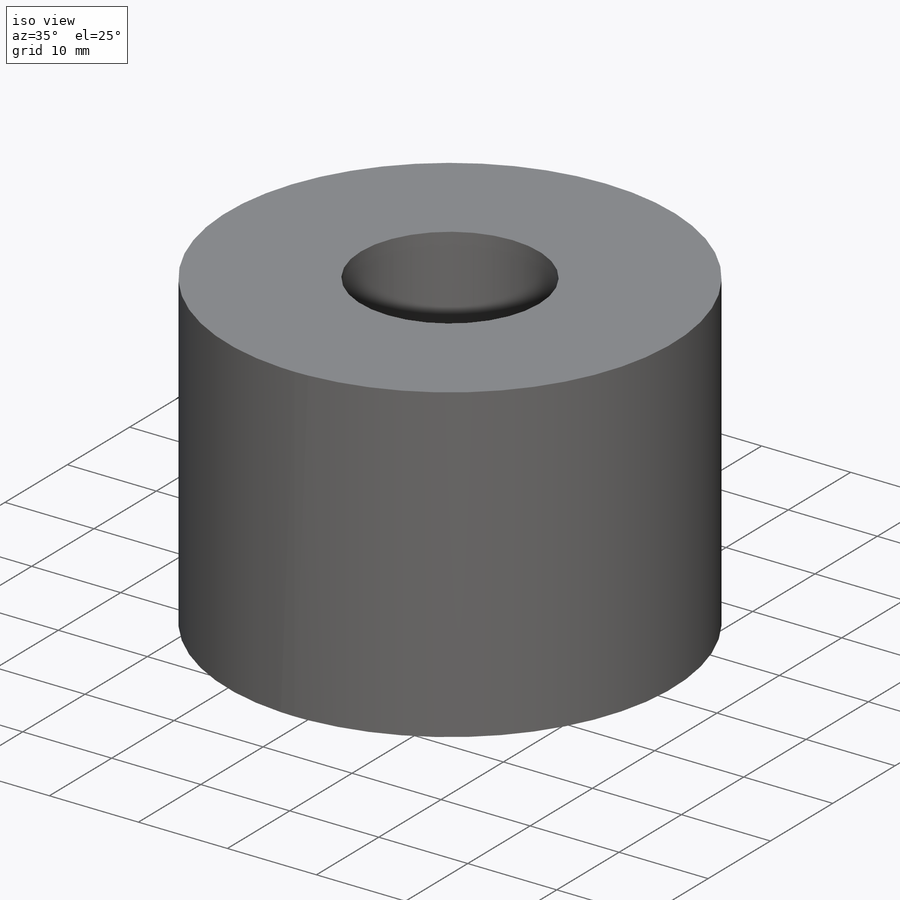
[diagram: iso view]
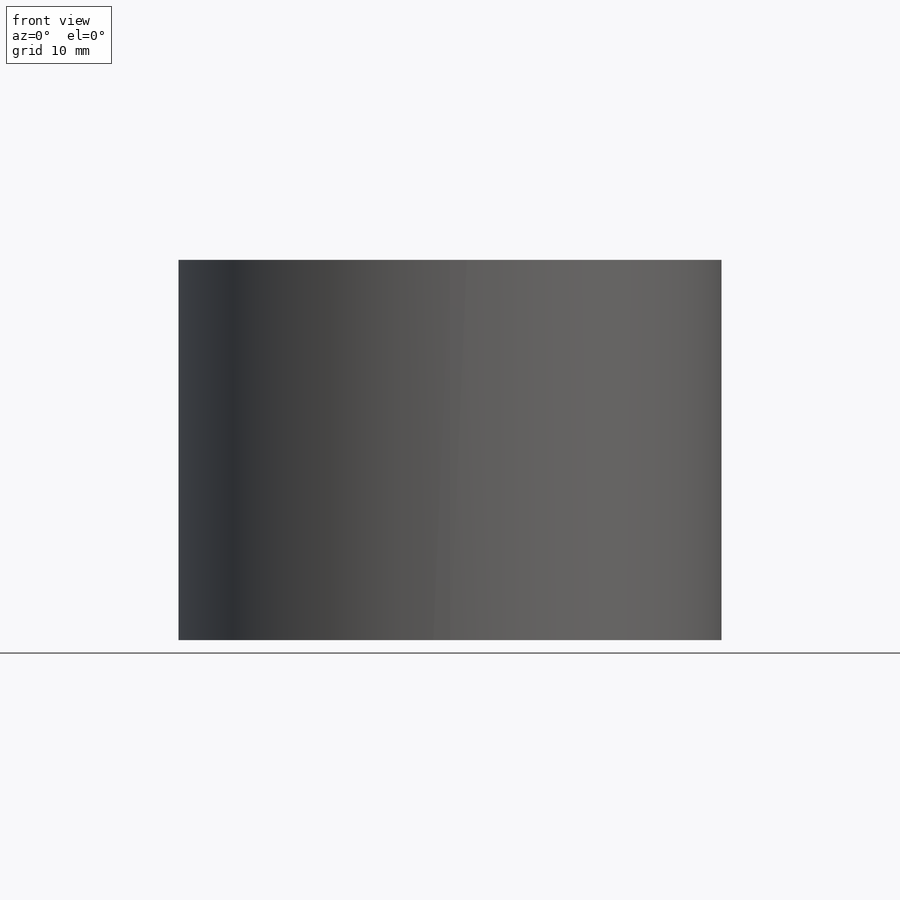
[diagram: front view]
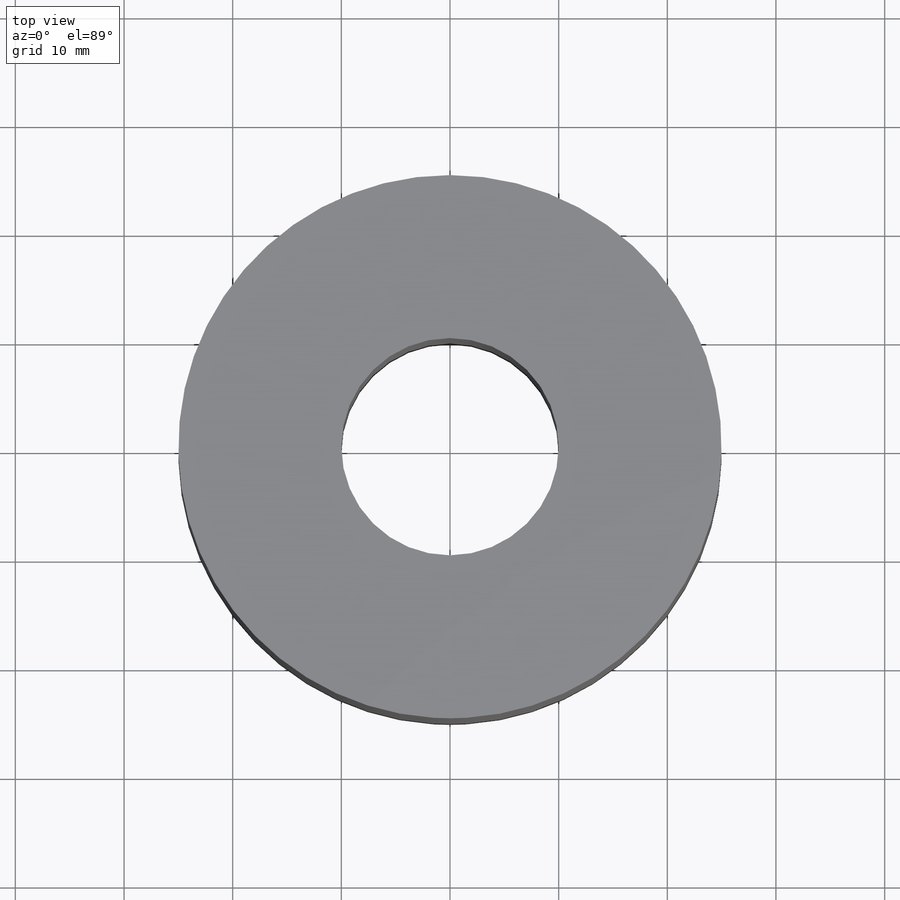
[diagram: top view]
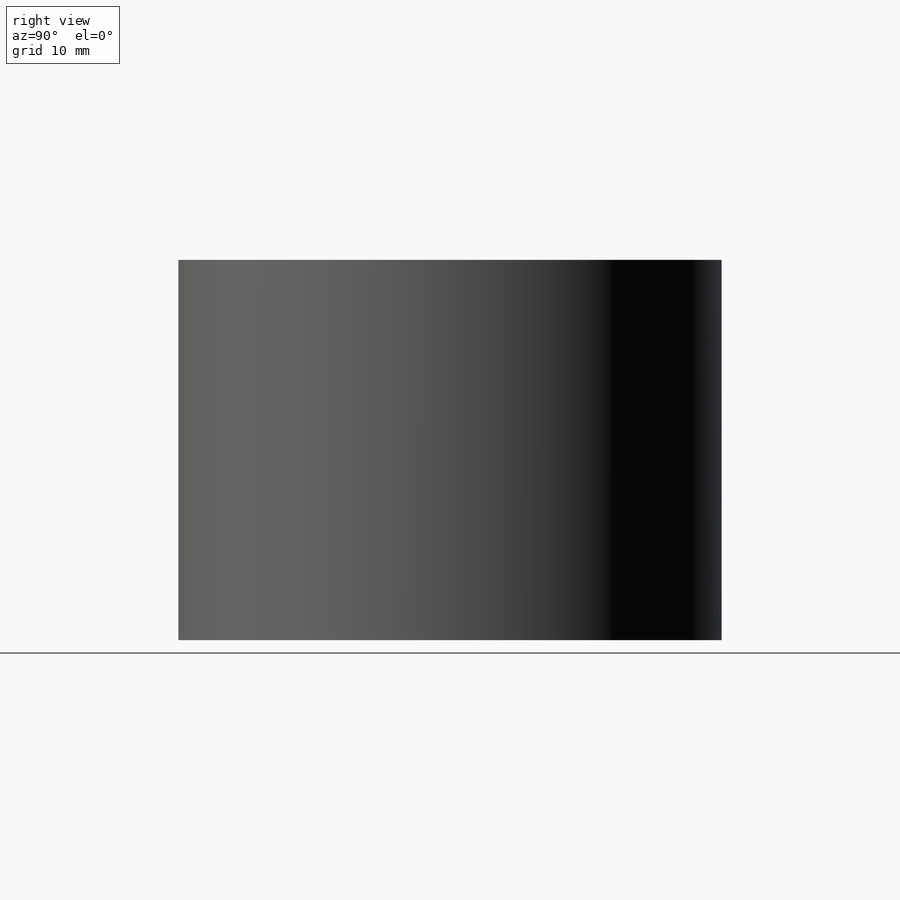
[diagram: right view]
SOLIDWORKS PART (.sldprt)
format: sldprt  version: not decoded by parser v0  size: 185,856 bytes
history: native  units: mm
features: plane x3, thread x3, material x1, sketch x1, extrude x1, cut_extrude x1, hole x1 + 3 further entries (+10 scaffold rows collapsed)
feature tree (24):
  scaffold x10  (default folders/planes/origin — collapsed)
  material  "Matériau <non spécifié>"
  plane  "Plan de face"
  plane  "Plan de dessus"
  plane  "Plan de droite"
  sketch  "Esquisse2"  dims[D1=50.0mm]
  extrude  "Boss.-Extru.1"  Depth=35mm
  "Esquisse3"
  cut_extrude  "Enlèv. mat.-Extru.1"  Depth=35mm
  hole  "Trou taraudé M62"  [1 undecoded]
  "Esquisse5"
  "Esquisse4"  4=25.4mm Diamètre du trou pour taraudage=5mm Profondeur du trou pour taraudage=20mm Angle de pointe=118deg
  thread  "Filetage de perçage1"  Diameter=15mm  [1 undecoded]
  thread  "Filetage de perçage2"  Diameter=15mm  [1 undecoded]
  thread  "Filetage de perçage3"  Diameter=15mm  [1 undecoded]
decode coverage: 6 of 7 modeling features carry decoded parameters; 3 rows unclassified (native names shown)
note: 4 parameter values undecoded
note: suppression state not decoded; provenance and decode notes live in map.json
